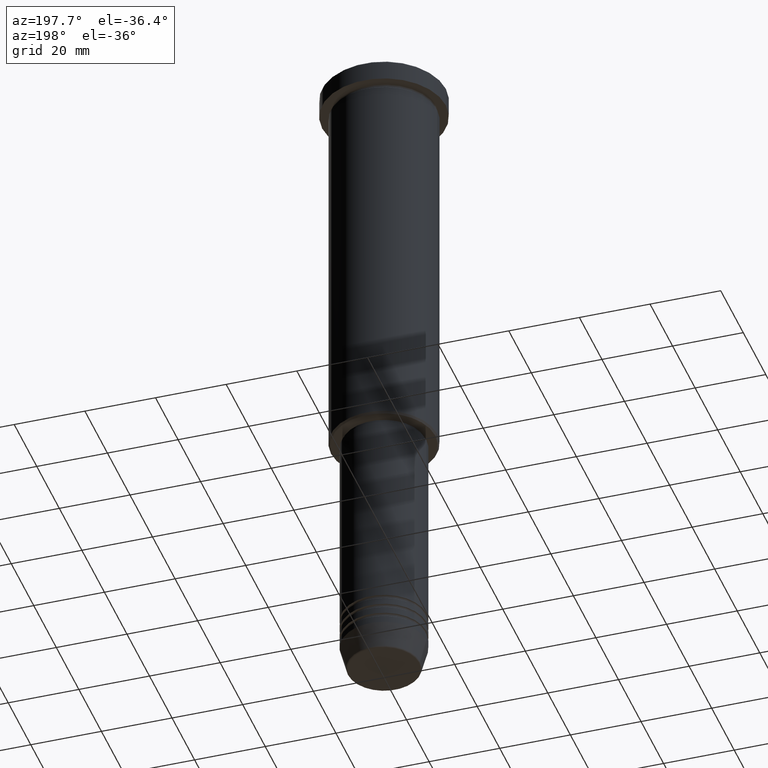
[diagram: clean part render]
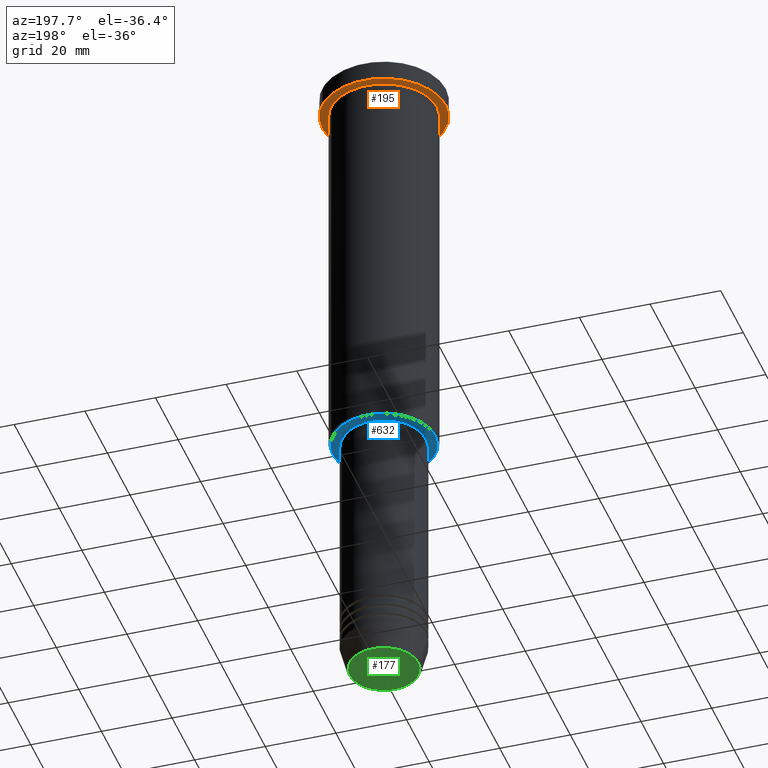
[diagram: same view with three faces highlighted in distinct colors, each labeled with its STEP entity id]
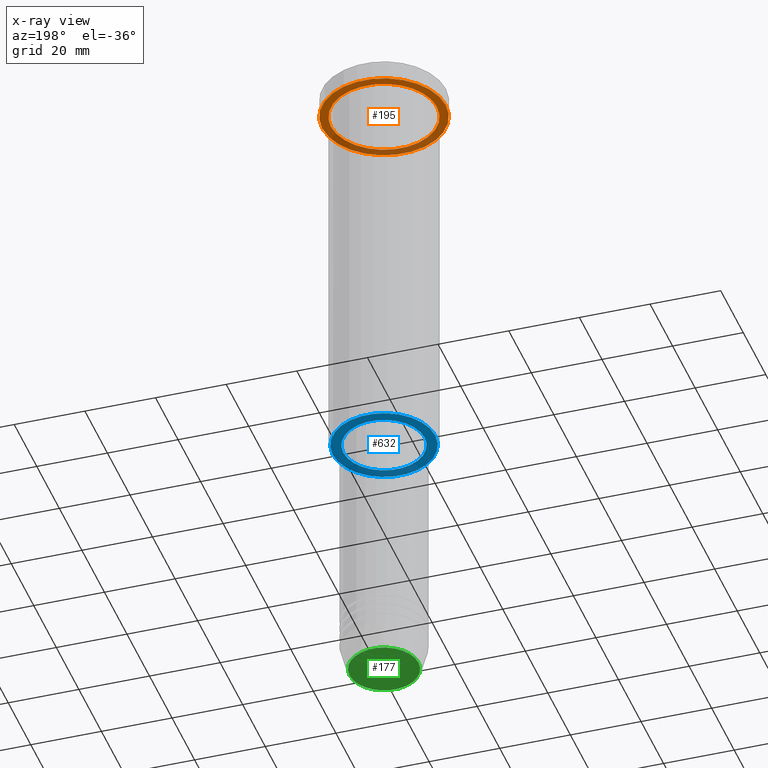
[diagram: x-ray of the same camera — body ghosted, the three highlighted faces saturated]
A machine part, auxiliary view with three faces highlighted in distinct colors.
The next image is the same camera in x-ray (body ghosted, the three faces saturated) — at least one of them is partly hidden behind the body in this view.
Their STEP definitions:

[orange] entity #195 — the highlighted planar face has unit normal (0, 0, -1).
#1 = ORIENTED_EDGE ( 'NONE', *, *, #284, .F. ) ;
#22 = AXIS2_PLACEMENT_3D ( 'NONE', #455, #1170, #363 ) ;
#49 = VERTEX_POINT ( 'NONE', #785 ) ;
#84 = EDGE_CURVE ( 'NONE', #796, #990, #222, .T. ) ;
#98 = CARTESIAN_POINT ( 'NONE',  ( 0.000000000000000000, 0.000000000000000000, -5.999999999999995559 ) ) ;
#104 = FACE_OUTER_BOUND ( 'NONE', #463, .T. ) ;
#106 = CARTESIAN_POINT ( 'NONE',  ( -17.50000000000000000, 2.143131898507868248E-15, -5.999999999999995559 ) ) ;
#110 = DIRECTION ( 'NONE',  ( -1.000000000000000000, 0.000000000000000000, -0.000000000000000000 ) ) ;
#186 = CARTESIAN_POINT ( 'NONE',  ( -15.00000000000000000, 0.000000000000000000, -5.999999999999994671 ) ) ;
#195 = ADVANCED_FACE ( 'NONE', ( #559, #104 ), #1023, .T. ) ;
#222 = CIRCLE ( 'NONE', #868, 15.00000000000000000 ) ;
#243 = CARTESIAN_POINT ( 'NONE',  ( 0.000000000000000000, 0.000000000000000000, -5.999999999999995559 ) ) ;
#267 = DIRECTION ( 'NONE',  ( 1.000000000000000000, 0.000000000000000000, 0.000000000000000000 ) ) ;
#284 = EDGE_CURVE ( 'NONE', #49, #1133, #352, .T. ) ;
#302 = EDGE_CURVE ( 'NONE', #990, #796, #500, .T. ) ;
#311 = DIRECTION ( 'NONE',  ( -0.000000000000000000, -0.000000000000000000, 1.000000000000000000 ) ) ;
#316 = AXIS2_PLACEMENT_3D ( 'NONE', #243, #1144, #1099 ) ;
#352 = CIRCLE ( 'NONE', #432, 17.50000000000000000 ) ;
#363 = DIRECTION ( 'NONE',  ( -1.000000000000000000, 0.000000000000000000, 0.000000000000000000 ) ) ;
#368 = CARTESIAN_POINT ( 'NONE',  ( 0.000000000000000000, 0.000000000000000000, -5.999999999999995559 ) ) ;
#392 = DIRECTION ( 'NONE',  ( 0.000000000000000000, 0.000000000000000000, -1.000000000000000000 ) ) ;
#398 = CIRCLE ( 'NONE', #316, 17.50000000000000000 ) ;
#429 = ORIENTED_EDGE ( 'NONE', *, *, #302, .T. ) ;
#432 = AXIS2_PLACEMENT_3D ( 'NONE', #368, #879, #267 ) ;
#455 = CARTESIAN_POINT ( 'NONE',  ( 0.000000000000000000, 0.000000000000000000, -5.999999999999995559 ) ) ;
#463 = EDGE_LOOP ( 'NONE', ( #1, #1052 ) ) ;
#474 = CARTESIAN_POINT ( 'NONE',  ( 0.000000000000000000, 17.50000000000000000, -5.999999999999995559 ) ) ;
#487 = DIRECTION ( 'NONE',  ( -1.000000000000000000, 0.000000000000000000, 0.000000000000000000 ) ) ;
#500 = CIRCLE ( 'NONE', #22, 15.00000000000000000 ) ;
#538 = EDGE_CURVE ( 'NONE', #1133, #49, #398, .T. ) ;
#559 = FACE_BOUND ( 'NONE', #1078, .T. ) ;
#785 = CARTESIAN_POINT ( 'NONE',  ( 17.50000000000000000, 0.000000000000000000, -5.999999999999995559 ) ) ;
#796 = VERTEX_POINT ( 'NONE', #186 ) ;
#851 = AXIS2_PLACEMENT_3D ( 'NONE', #474, #392, #110 ) ;
#868 = AXIS2_PLACEMENT_3D ( 'NONE', #98, #311, #487 ) ;
#879 = DIRECTION ( 'NONE',  ( -0.000000000000000000, -0.000000000000000000, 1.000000000000000000 ) ) ;
#918 = ORIENTED_EDGE ( 'NONE', *, *, #84, .T. ) ;
#990 = VERTEX_POINT ( 'NONE', #1150 ) ;
#1023 = PLANE ( 'NONE',  #851 ) ;
#1052 = ORIENTED_EDGE ( 'NONE', *, *, #538, .F. ) ;
#1078 = EDGE_LOOP ( 'NONE', ( #918, #429 ) ) ;
#1099 = DIRECTION ( 'NONE',  ( 1.000000000000000000, 0.000000000000000000, 0.000000000000000000 ) ) ;
#1133 = VERTEX_POINT ( 'NONE', #106 ) ;
#1144 = DIRECTION ( 'NONE',  ( -0.000000000000000000, -0.000000000000000000, 1.000000000000000000 ) ) ;
#1150 = CARTESIAN_POINT ( 'NONE',  ( 15.00000000000000000, 1.836970198721029589E-15, -5.999999999999994671 ) ) ;
#1170 = DIRECTION ( 'NONE',  ( -0.000000000000000000, -0.000000000000000000, 1.000000000000000000 ) ) ;

[blue] entity #632 — the highlighted planar face has unit normal (0, 0, -1).
#29 = EDGE_CURVE ( 'NONE', #947, #378, #371, .T. ) ;
#43 = DIRECTION ( 'NONE',  ( 0.000000000000000000, 0.000000000000000000, -1.000000000000000000 ) ) ;
#67 = CARTESIAN_POINT ( 'NONE',  ( 0.000000000000000000, 0.000000000000000000, -116.0000000000000142 ) ) ;
#77 = CARTESIAN_POINT ( 'NONE',  ( -11.50000000000000000, 1.408343819019456176E-15, -116.0000000000000142 ) ) ;
#101 = CARTESIAN_POINT ( 'NONE',  ( 0.000000000000000000, 15.00000000000000000, -116.0000000000000142 ) ) ;
#108 = CARTESIAN_POINT ( 'NONE',  ( -14.50000000000003908, 1.806354028742348168E-15, -116.0000000000000142 ) ) ;
#158 = CIRCLE ( 'NONE', #914, 11.50000000000000000 ) ;
#171 = CARTESIAN_POINT ( 'NONE',  ( 11.50000000000000000, 0.000000000000000000, -116.0000000000000142 ) ) ;
#198 = FACE_OUTER_BOUND ( 'NONE', #1083, .T. ) ;
#228 = CARTESIAN_POINT ( 'NONE',  ( 0.000000000000000000, 0.000000000000000000, -116.0000000000000142 ) ) ;
#272 = DIRECTION ( 'NONE',  ( 1.000000000000000000, 0.000000000000000000, 0.000000000000000000 ) ) ;
#281 = ORIENTED_EDGE ( 'NONE', *, *, #1152, .T. ) ;
#291 = VERTEX_POINT ( 'NONE', #171 ) ;
#297 = VERTEX_POINT ( 'NONE', #77 ) ;
#337 = ORIENTED_EDGE ( 'NONE', *, *, #784, .T. ) ;
#371 = CIRCLE ( 'NONE', #989, 14.50000000000003908 ) ;
#378 = VERTEX_POINT ( 'NONE', #108 ) ;
#388 = DIRECTION ( 'NONE',  ( 0.000000000000000000, 0.000000000000000000, -1.000000000000000000 ) ) ;
#470 = CARTESIAN_POINT ( 'NONE',  ( 0.000000000000000000, 0.000000000000000000, -116.0000000000000142 ) ) ;
#473 = EDGE_LOOP ( 'NONE', ( #337, #1096 ) ) ;
#481 = DIRECTION ( 'NONE',  ( -1.000000000000000000, 0.000000000000000000, 0.000000000000000000 ) ) ;
#580 = DIRECTION ( 'NONE',  ( -1.000000000000000000, 0.000000000000000000, 0.000000000000000000 ) ) ;
#632 = ADVANCED_FACE ( 'NONE', ( #198, #917 ), #1175, .T. ) ;
#638 = DIRECTION ( 'NONE',  ( -1.000000000000000000, 0.000000000000000000, -0.000000000000000000 ) ) ;
#672 = CIRCLE ( 'NONE', #956, 14.50000000000003908 ) ;
#691 = EDGE_CURVE ( 'NONE', #297, #291, #158, .T. ) ;
#784 = EDGE_CURVE ( 'NONE', #291, #297, #1110, .T. ) ;
#805 = CARTESIAN_POINT ( 'NONE',  ( 0.000000000000000000, 0.000000000000000000, -116.0000000000000142 ) ) ;
#914 = AXIS2_PLACEMENT_3D ( 'NONE', #67, #1077, #272 ) ;
#917 = FACE_BOUND ( 'NONE', #473, .T. ) ;
#944 = ORIENTED_EDGE ( 'NONE', *, *, #29, .T. ) ;
#947 = VERTEX_POINT ( 'NONE', #1064 ) ;
#956 = AXIS2_PLACEMENT_3D ( 'NONE', #470, #1019, #481 ) ;
#989 = AXIS2_PLACEMENT_3D ( 'NONE', #228, #43, #580 ) ;
#995 = DIRECTION ( 'NONE',  ( -0.000000000000000000, -0.000000000000000000, 1.000000000000000000 ) ) ;
#1019 = DIRECTION ( 'NONE',  ( 0.000000000000000000, 0.000000000000000000, -1.000000000000000000 ) ) ;
#1064 = CARTESIAN_POINT ( 'NONE',  ( 14.50000000000003908, 0.000000000000000000, -116.0000000000000142 ) ) ;
#1068 = AXIS2_PLACEMENT_3D ( 'NONE', #805, #995, #1169 ) ;
#1077 = DIRECTION ( 'NONE',  ( -0.000000000000000000, -0.000000000000000000, 1.000000000000000000 ) ) ;
#1083 = EDGE_LOOP ( 'NONE', ( #944, #281 ) ) ;
#1096 = ORIENTED_EDGE ( 'NONE', *, *, #691, .T. ) ;
#1110 = CIRCLE ( 'NONE', #1068, 11.50000000000000000 ) ;
#1127 = AXIS2_PLACEMENT_3D ( 'NONE', #101, #388, #638 ) ;
#1152 = EDGE_CURVE ( 'NONE', #378, #947, #672, .T. ) ;
#1169 = DIRECTION ( 'NONE',  ( 1.000000000000000000, 0.000000000000000000, 0.000000000000000000 ) ) ;
#1175 = PLANE ( 'NONE',  #1127 ) ;

[green] entity #177 — the highlighted planar face has unit normal (0, -0, 1).
#9 = PLANE ( 'NONE',  #92 ) ;
#15 = FACE_OUTER_BOUND ( 'NONE', #699, .T. ) ;
#89 = DIRECTION ( 'NONE',  ( 0.000000000000000000, 0.000000000000000000, -1.000000000000000000 ) ) ;
#91 = CARTESIAN_POINT ( 'NONE',  ( -9.740692158992667160, 1.222463696683475393E-15, -191.0000000000000000 ) ) ;
#92 = AXIS2_PLACEMENT_3D ( 'NONE', #292, #565, #384 ) ;
#177 = ADVANCED_FACE ( 'NONE', ( #15 ), #9, .F. ) ;
#226 = AXIS2_PLACEMENT_3D ( 'NONE', #1072, #967, #712 ) ;
#292 = CARTESIAN_POINT ( 'NONE',  ( 0.000000000000000000, 0.000000000000000000, -191.0000000000000000 ) ) ;
#384 = DIRECTION ( 'NONE',  ( 1.000000000000000000, 0.000000000000000000, 0.000000000000000000 ) ) ;
#385 = CARTESIAN_POINT ( 'NONE',  ( 0.000000000000000000, 0.000000000000000000, -191.0000000000000000 ) ) ;
#561 = DIRECTION ( 'NONE',  ( 1.000000000000000000, 0.000000000000000000, 0.000000000000000000 ) ) ;
#565 = DIRECTION ( 'NONE',  ( 0.000000000000000000, -0.000000000000000000, 1.000000000000000000 ) ) ;
#634 = ORIENTED_EDGE ( 'NONE', *, *, #959, .T. ) ;
#699 = EDGE_LOOP ( 'NONE', ( #779, #634 ) ) ;
#712 = DIRECTION ( 'NONE',  ( 1.000000000000000000, 0.000000000000000000, 0.000000000000000000 ) ) ;
#756 = VERTEX_POINT ( 'NONE', #91 ) ;
#779 = ORIENTED_EDGE ( 'NONE', *, *, #1097, .T. ) ;
#800 = CIRCLE ( 'NONE', #226, 9.740692158992667160 ) ;
#818 = AXIS2_PLACEMENT_3D ( 'NONE', #385, #89, #561 ) ;
#894 = CIRCLE ( 'NONE', #818, 9.740692158992667160 ) ;
#959 = EDGE_CURVE ( 'NONE', #756, #1147, #800, .T. ) ;
#967 = DIRECTION ( 'NONE',  ( 0.000000000000000000, 0.000000000000000000, -1.000000000000000000 ) ) ;
#1072 = CARTESIAN_POINT ( 'NONE',  ( 0.000000000000000000, 0.000000000000000000, -191.0000000000000000 ) ) ;
#1097 = EDGE_CURVE ( 'NONE', #1147, #756, #894, .T. ) ;
#1109 = CARTESIAN_POINT ( 'NONE',  ( 9.740692158992667160, 0.000000000000000000, -191.0000000000000000 ) ) ;
#1147 = VERTEX_POINT ( 'NONE', #1109 ) ;